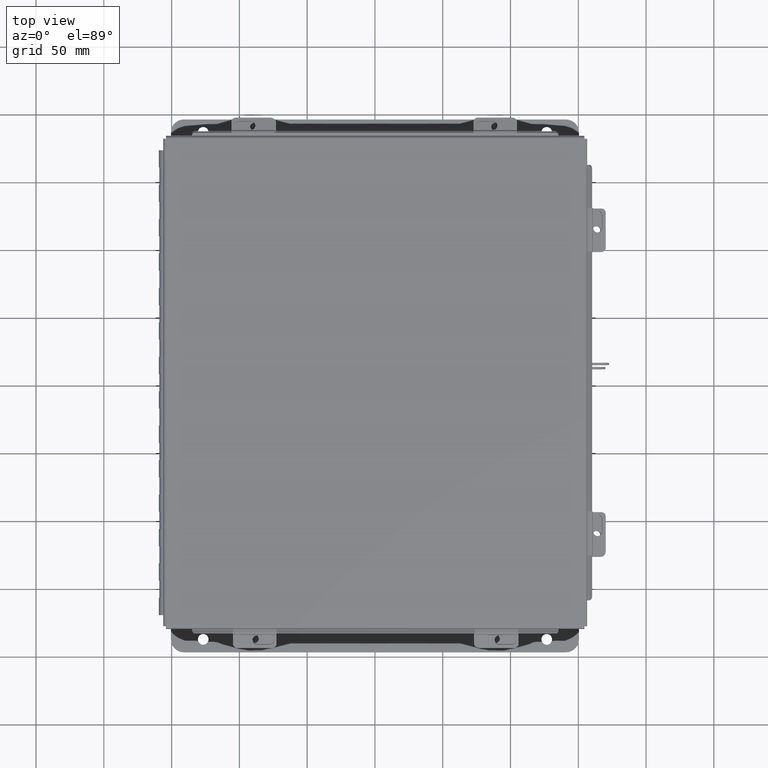
[diagram: clean part render]
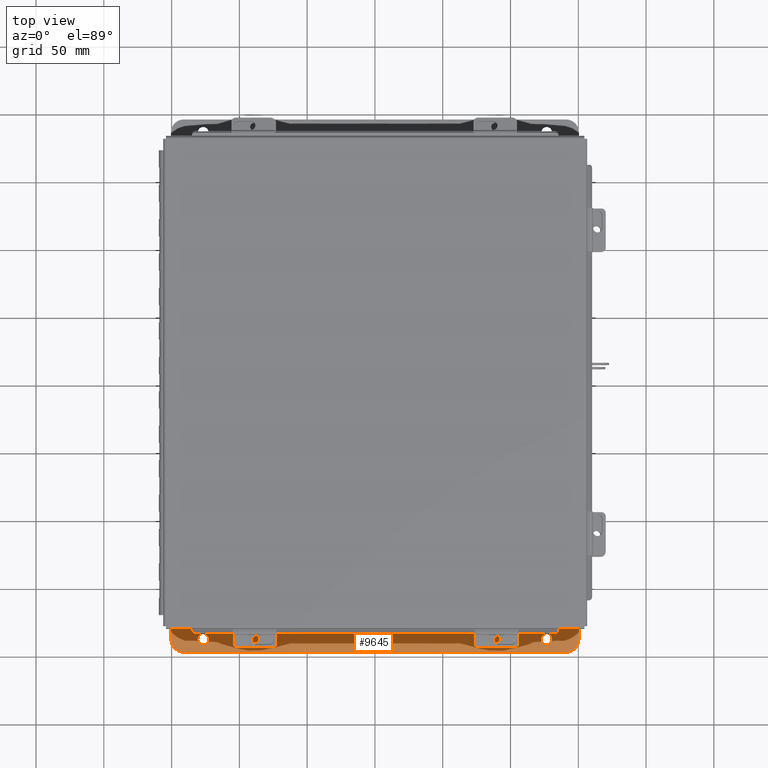
[diagram: same view with one face highlighted and labeled with its STEP entity id]
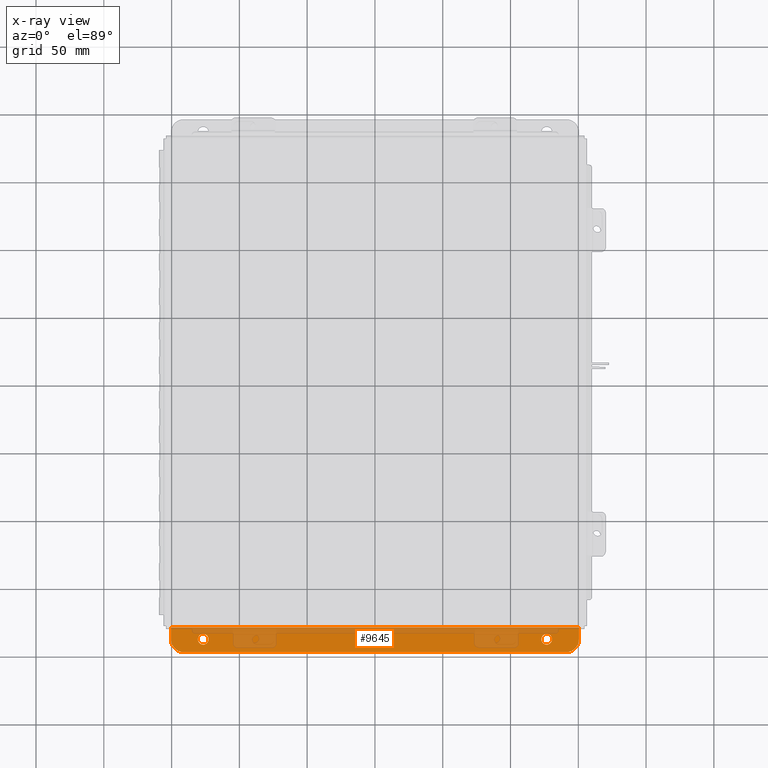
[diagram: x-ray of the same camera — body ghosted, the highlighted face saturated]
A machine part, top view. The second image highlights one B-rep face of the part: STEP entity #9645.
The next image is the same camera in x-ray: the body ghosted, the highlighted face saturated — about 37% of this face is hidden behind the body in this view.
In plain terms, the highlighted planar face has unit normal (0, -0, 1).
Its self-contained STEP definition (entity closure, byte-faithful):
#309 = CARTESIAN_POINT ( 'NONE',  ( -4.987800000000000900, 0.3628000000000001800, -3.112300000000001200 ) ) ;
#361 = ORIENTED_EDGE ( 'NONE', *, *, #9244, .T. ) ;
#565 = CARTESIAN_POINT ( 'NONE',  ( 5.550299999999999100, 0.3628000000000002300, -3.112300000000001200 ) ) ;
#749 = CIRCLE ( 'NONE', #4141, 0.1560000000000001700 ) ;
#795 = VERTEX_POINT ( 'NONE', #16270 ) ;
#1027 = ORIENTED_EDGE ( 'NONE', *, *, #15326, .F. ) ;
#1110 = CARTESIAN_POINT ( 'NONE',  ( 5.925299999999999100, 1.577762228432578300E-017, -3.112299999999999800 ) ) ;
#1230 = EDGE_CURVE ( 'NONE', #4650, #10926, #11806, .T. ) ;
#1249 = CIRCLE ( 'NONE', #13000, 0.1560000000000001700 ) ;
#1253 = CARTESIAN_POINT ( 'NONE',  ( 4.987799999999998200, 0.5188000000000003700, -3.112300000000001600 ) ) ;
#1501 = DIRECTION ( 'NONE',  ( 0.0000000000000000000, -1.000000000000000000, 3.702694488566362300E-015 ) ) ;
#1762 = DIRECTION ( 'NONE',  ( 0.0000000000000000000, -1.000000000000000000, 3.502369222646487400E-015 ) ) ;
#1965 = CARTESIAN_POINT ( 'NONE',  ( -5.925300000000001800, 0.7378000000000002300, -3.112300000000003000 ) ) ;
#2009 = DIRECTION ( 'NONE',  ( 0.0000000000000000000, -1.000000000000000000, 4.370956789862820400E-015 ) ) ;
#2036 = EDGE_CURVE ( 'NONE', #14754, #3737, #7565, .T. ) ;
#2055 = CARTESIAN_POINT ( 'NONE',  ( -5.550299999999999100, 0.3628000000000002900, -3.112300000000001200 ) ) ;
#2526 = CARTESIAN_POINT ( 'NONE',  ( 4.987799999999998200, 0.3628000000000001800, -3.112300000000001200 ) ) ;
#2607 = FACE_BOUND ( 'NONE', #7408, .T. ) ;
#2734 = PLANE ( 'NONE',  #4622 ) ;
#2766 = ORIENTED_EDGE ( 'NONE', *, *, #14360, .F. ) ;
#2909 = EDGE_LOOP ( 'NONE', ( #2766, #5947, #17041, #5325, #1027, #14961 ) ) ;
#3397 = CIRCLE ( 'NONE', #17901, 0.3750000000000000600 ) ;
#3536 = DIRECTION ( 'NONE',  ( 0.0000000000000000000, -1.000000000000000000, 4.370956789862820400E-015 ) ) ;
#3649 = EDGE_CURVE ( 'NONE', #12990, #4650, #9495, .T. ) ;
#3687 = DIRECTION ( 'NONE',  ( -0.0000000000000000000, 1.000000000000000000, -3.702694488566362300E-015 ) ) ;
#3737 = VERTEX_POINT ( 'NONE', #10272 ) ;
#3993 = DIRECTION ( 'NONE',  ( 0.0000000000000000000, -1.000000000000000000, 3.502369222646487400E-015 ) ) ;
#4141 = AXIS2_PLACEMENT_3D ( 'NONE', #16789, #8184, #18221 ) ;
#4622 = AXIS2_PLACEMENT_3D ( 'NONE', #14350, #10109, #1501 ) ;
#4650 = VERTEX_POINT ( 'NONE', #16147 ) ;
#4723 = CARTESIAN_POINT ( 'NONE',  ( -5.550299999999999100, 0.7378000000000002300, -3.112300000000003000 ) ) ;
#4776 = CARTESIAN_POINT ( 'NONE',  ( 5.925299999999999100, 0.7378000000000002300, -3.112300000000003000 ) ) ;
#4982 = DIRECTION ( 'NONE',  ( -0.0000000000000000000, -3.702694488566362300E-015, -1.000000000000000000 ) ) ;
#5000 = VECTOR ( 'NONE', #9714, 39.37007874015748100 ) ;
#5039 = VECTOR ( 'NONE', #14730, 39.37007874015748100 ) ;
#5325 = ORIENTED_EDGE ( 'NONE', *, *, #3649, .F. ) ;
#5350 = VERTEX_POINT ( 'NONE', #14910 ) ;
#5464 = LINE ( 'NONE', #1110, #5000 ) ;
#5947 = ORIENTED_EDGE ( 'NONE', *, *, #6498, .T. ) ;
#5963 = LINE ( 'NONE', #4776, #5039 ) ;
#6002 = FACE_OUTER_BOUND ( 'NONE', #2909, .T. ) ;
#6145 = ORIENTED_EDGE ( 'NONE', *, *, #13773, .T. ) ;
#6498 = EDGE_CURVE ( 'NONE', #12479, #10926, #9022, .T. ) ;
#6596 = VECTOR ( 'NONE', #18425, 39.37007874015748100 ) ;
#6745 = ORIENTED_EDGE ( 'NONE', *, *, #2036, .T. ) ;
#7408 = EDGE_LOOP ( 'NONE', ( #6745, #12015 ) ) ;
#7565 = CIRCLE ( 'NONE', #15917, 0.1560000000000001700 ) ;
#8184 = DIRECTION ( 'NONE',  ( -0.0000000000000000000, -3.702694488566362300E-015, -1.000000000000000000 ) ) ;
#8667 = VERTEX_POINT ( 'NONE', #16540 ) ;
#9022 = CIRCLE ( 'NONE', #17659, 0.3750000000000000600 ) ;
#9244 = EDGE_CURVE ( 'NONE', #8667, #13602, #1249, .T. ) ;
#9495 = LINE ( 'NONE', #9890, #6596 ) ;
#9645 = ADVANCED_FACE ( 'NONE', ( #9790, #2607, #6002 ), #2734, .T. ) ;
#9714 = DIRECTION ( 'NONE',  ( -0.0000000000000000000, -1.000000000000000000, 3.702694488566362300E-015 ) ) ;
#9759 = CIRCLE ( 'NONE', #16336, 0.1560000000000001700 ) ;
#9790 = FACE_BOUND ( 'NONE', #10108, .T. ) ;
#9890 = CARTESIAN_POINT ( 'NONE',  ( 5.925299999999999100, 0.01300000000000010700, -3.112299999999999800 ) ) ;
#10108 = EDGE_LOOP ( 'NONE', ( #361, #6145 ) ) ;
#10109 = DIRECTION ( 'NONE',  ( 0.0000000000000000000, 3.702694488566362300E-015, 1.000000000000000000 ) ) ;
#10272 = CARTESIAN_POINT ( 'NONE',  ( 4.987799999999998200, 0.2067999999999999800, -3.112300000000000700 ) ) ;
#10362 = DIRECTION ( 'NONE',  ( -0.0000000000000000000, -3.702694488566362300E-015, -1.000000000000000000 ) ) ;
#10605 = DIRECTION ( 'NONE',  ( 0.0000000000000000000, 3.702694488566362300E-015, 1.000000000000000000 ) ) ;
#10776 = EDGE_CURVE ( 'NONE', #3737, #14754, #749, .T. ) ;
#10926 = VERTEX_POINT ( 'NONE', #17353 ) ;
#11360 = VECTOR ( 'NONE', #3687, 39.37007874015748100 ) ;
#11806 = LINE ( 'NONE', #1965, #11360 ) ;
#12015 = ORIENTED_EDGE ( 'NONE', *, *, #10776, .T. ) ;
#12108 = DIRECTION ( 'NONE',  ( 0.0000000000000000000, 3.702694488566362300E-015, 1.000000000000000000 ) ) ;
#12479 = VERTEX_POINT ( 'NONE', #4723 ) ;
#12578 = DIRECTION ( 'NONE',  ( -0.0000000000000000000, -3.702694488566362300E-015, -1.000000000000000000 ) ) ;
#12990 = VERTEX_POINT ( 'NONE', #14445 ) ;
#13000 = AXIS2_PLACEMENT_3D ( 'NONE', #13530, #4982, #15010 ) ;
#13530 = CARTESIAN_POINT ( 'NONE',  ( -4.987800000000000900, 0.3628000000000001800, -3.112300000000001200 ) ) ;
#13602 = VERTEX_POINT ( 'NONE', #17140 ) ;
#13773 = EDGE_CURVE ( 'NONE', #13602, #8667, #9759, .T. ) ;
#14350 = CARTESIAN_POINT ( 'NONE',  ( 0.0000000000000000000, -1.083149218740318000E-014, -3.112299999999999800 ) ) ;
#14360 = EDGE_CURVE ( 'NONE', #12479, #795, #5963, .T. ) ;
#14445 = CARTESIAN_POINT ( 'NONE',  ( 5.925299999999999100, 0.01299999999999996600, -3.112299999999999800 ) ) ;
#14730 = DIRECTION ( 'NONE',  ( 1.000000000000000000, -0.0000000000000000000, -0.0000000000000000000 ) ) ;
#14754 = VERTEX_POINT ( 'NONE', #1253 ) ;
#14910 = CARTESIAN_POINT ( 'NONE',  ( 5.925299999999999100, 0.3628000000000002300, -3.112300000000001200 ) ) ;
#14961 = ORIENTED_EDGE ( 'NONE', *, *, #16954, .T. ) ;
#15010 = DIRECTION ( 'NONE',  ( 0.0000000000000000000, -1.000000000000000000, 3.502369222646487400E-015 ) ) ;
#15326 = EDGE_CURVE ( 'NONE', #5350, #12990, #5464, .T. ) ;
#15917 = AXIS2_PLACEMENT_3D ( 'NONE', #2526, #12578, #3993 ) ;
#16147 = CARTESIAN_POINT ( 'NONE',  ( -5.925300000000000000, 0.01299999999999996600, -3.112299999999999800 ) ) ;
#16270 = CARTESIAN_POINT ( 'NONE',  ( 5.550299999999999100, 0.7378000000000002300, -3.112300000000003000 ) ) ;
#16336 = AXIS2_PLACEMENT_3D ( 'NONE', #309, #10362, #1762 ) ;
#16540 = CARTESIAN_POINT ( 'NONE',  ( -4.987800000000000900, 0.5188000000000003700, -3.112300000000001600 ) ) ;
#16789 = CARTESIAN_POINT ( 'NONE',  ( 4.987799999999998200, 0.3628000000000001800, -3.112300000000001200 ) ) ;
#16954 = EDGE_CURVE ( 'NONE', #5350, #795, #3397, .T. ) ;
#17041 = ORIENTED_EDGE ( 'NONE', *, *, #1230, .F. ) ;
#17140 = CARTESIAN_POINT ( 'NONE',  ( -4.987800000000000900, 0.2067999999999999800, -3.112300000000000700 ) ) ;
#17353 = CARTESIAN_POINT ( 'NONE',  ( -5.925300000000001800, 0.3628000000000002900, -3.112300000000001200 ) ) ;
#17659 = AXIS2_PLACEMENT_3D ( 'NONE', #2055, #12108, #3536 ) ;
#17901 = AXIS2_PLACEMENT_3D ( 'NONE', #565, #10605, #2009 ) ;
#18221 = DIRECTION ( 'NONE',  ( 0.0000000000000000000, -1.000000000000000000, 3.502369222646487400E-015 ) ) ;
#18425 = DIRECTION ( 'NONE',  ( -1.000000000000000000, 0.0000000000000000000, 0.0000000000000000000 ) ) ;